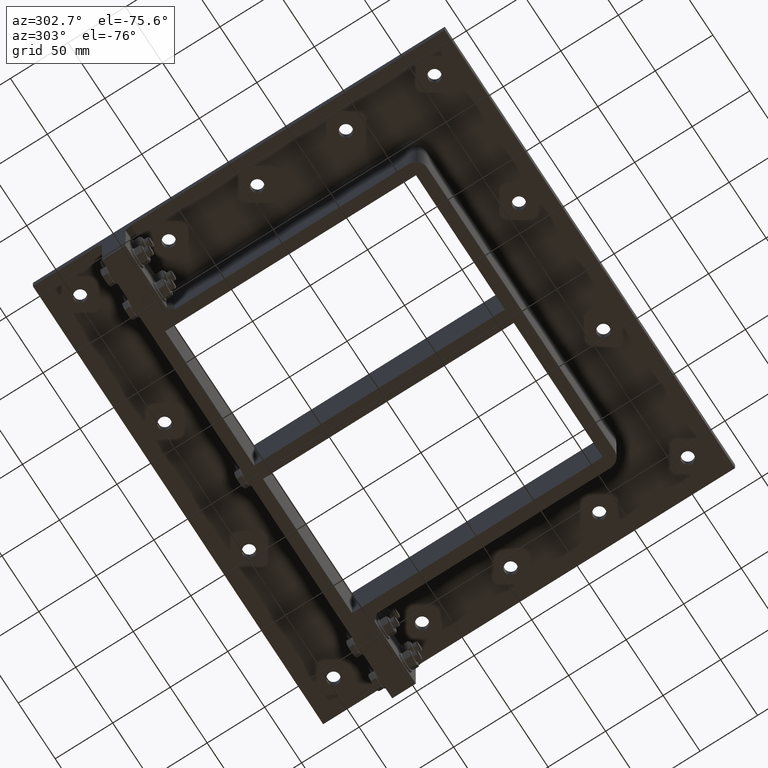
[diagram: clean part render]
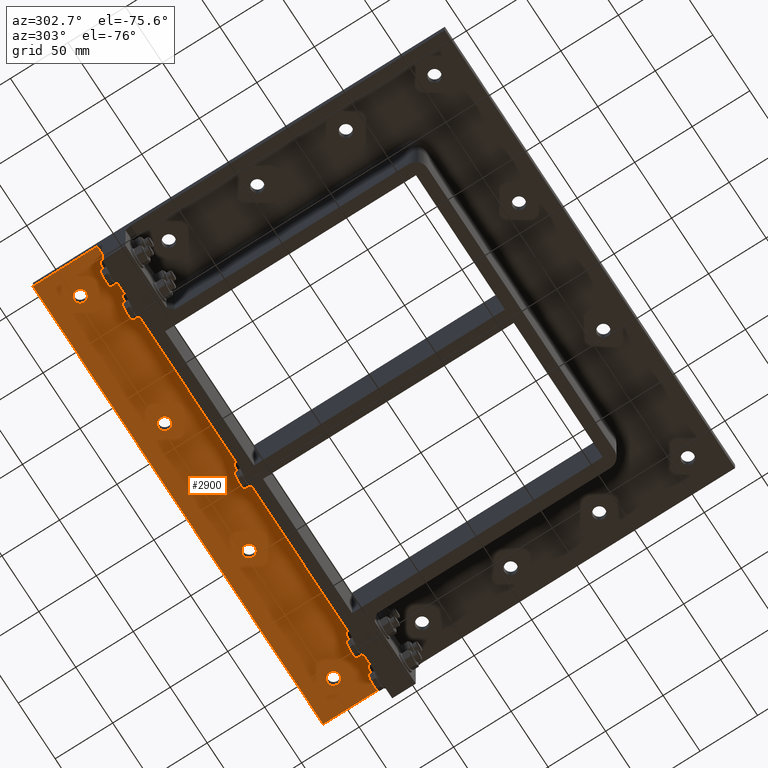
[diagram: same view with one face highlighted and labeled with its STEP entity id]
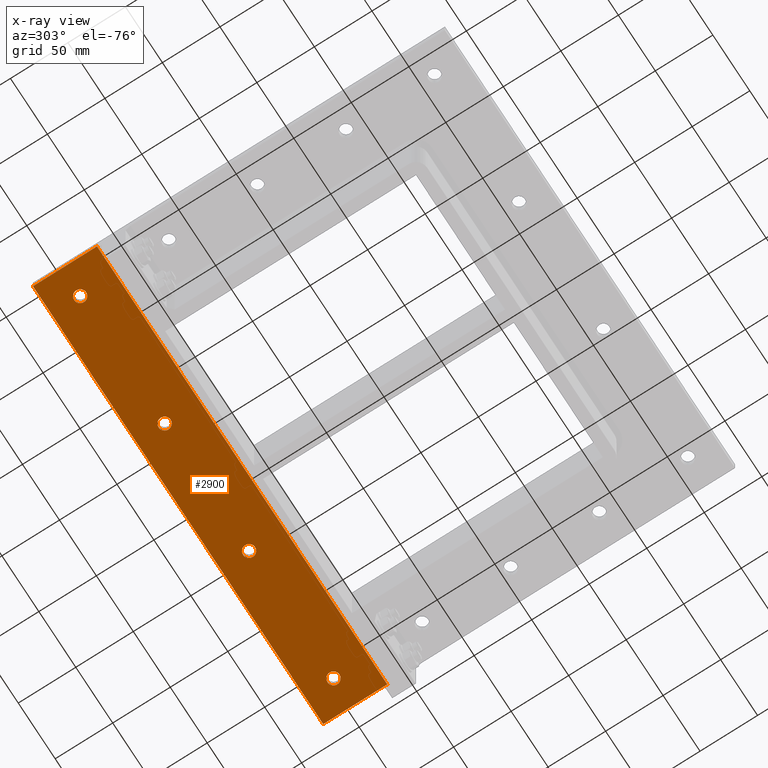
[diagram: x-ray of the same camera — body ghosted, the highlighted face saturated]
A machine part, auxiliary view. The second image highlights one B-rep face of the part: STEP entity #2900.
The next image is the same camera in x-ray: the body ghosted, the highlighted face saturated — about 0% of this face is hidden behind the body in this view.
In plain terms, the highlighted planar face has unit normal (0, 0, 1).
Its self-contained STEP definition (entity closure, byte-faithful):
#275=FACE_BOUND('',#751,.T.);
#276=FACE_BOUND('',#752,.T.);
#277=FACE_BOUND('',#753,.T.);
#278=FACE_BOUND('',#754,.T.);
#387=CIRCLE('',#3349,5.25);
#388=CIRCLE('',#3350,5.25);
#389=CIRCLE('',#3351,5.25);
#390=CIRCLE('',#3352,5.25);
#537=FACE_OUTER_BOUND('',#750,.T.);
#750=EDGE_LOOP('',(#2332,#2333,#2334,#2335));
#751=EDGE_LOOP('',(#2336));
#752=EDGE_LOOP('',(#2337));
#753=EDGE_LOOP('',(#2338));
#754=EDGE_LOOP('',(#2339));
#986=LINE('',#4700,#1209);
#1004=LINE('',#4786,#1227);
#1008=LINE('',#4793,#1231);
#1009=LINE('',#4794,#1232);
#1209=VECTOR('',#3840,10.);
#1227=VECTOR('',#3932,10.);
#1231=VECTOR('',#3938,10.);
#1232=VECTOR('',#3939,10.);
#1424=VERTEX_POINT('',#4693);
#1427=VERTEX_POINT('',#4698);
#1458=VERTEX_POINT('',#4785);
#1460=VERTEX_POINT('',#4792);
#1461=VERTEX_POINT('',#4795);
#1462=VERTEX_POINT('',#4797);
#1463=VERTEX_POINT('',#4799);
#1464=VERTEX_POINT('',#4801);
#1729=EDGE_CURVE('',#1427,#1424,#986,.T.);
#1771=EDGE_CURVE('',#1458,#1424,#1004,.T.);
#1775=EDGE_CURVE('',#1427,#1460,#1008,.T.);
#1776=EDGE_CURVE('',#1460,#1458,#1009,.T.);
#1777=EDGE_CURVE('',#1461,#1461,#387,.T.);
#1778=EDGE_CURVE('',#1462,#1462,#388,.T.);
#1779=EDGE_CURVE('',#1463,#1463,#389,.T.);
#1780=EDGE_CURVE('',#1464,#1464,#390,.T.);
#2332=ORIENTED_EDGE('',*,*,#1729,.F.);
#2333=ORIENTED_EDGE('',*,*,#1775,.T.);
#2334=ORIENTED_EDGE('',*,*,#1776,.T.);
#2335=ORIENTED_EDGE('',*,*,#1771,.T.);
#2336=ORIENTED_EDGE('',*,*,#1777,.T.);
#2337=ORIENTED_EDGE('',*,*,#1778,.T.);
#2338=ORIENTED_EDGE('',*,*,#1779,.T.);
#2339=ORIENTED_EDGE('',*,*,#1780,.T.);
#2778=PLANE('',#3348);
#2900=ADVANCED_FACE('',(#537,#275,#276,#277,#278),#2778,.F.);
#3348=AXIS2_PLACEMENT_3D('',#4791,#3936,#3937);
#3349=AXIS2_PLACEMENT_3D('',#4796,#3940,#3941);
#3350=AXIS2_PLACEMENT_3D('',#4798,#3942,#3943);
#3351=AXIS2_PLACEMENT_3D('',#4800,#3944,#3945);
#3352=AXIS2_PLACEMENT_3D('',#4802,#3946,#3947);
#3840=DIRECTION('',(1.,0.,0.));
#3932=DIRECTION('',(1.98475624513995E-16,-1.,0.));
#3936=DIRECTION('center_axis',(0.,0.,1.));
#3937=DIRECTION('ref_axis',(1.,0.,0.));
#3938=DIRECTION('',(-3.96951249027989E-16,1.,0.));
#3939=DIRECTION('',(1.,9.0399839155229E-17,0.));
#3940=DIRECTION('center_axis',(0.,0.,1.));
#3941=DIRECTION('ref_axis',(1.,0.,0.));
#3942=DIRECTION('center_axis',(0.,0.,1.));
#3943=DIRECTION('ref_axis',(1.,0.,0.));
#3944=DIRECTION('center_axis',(0.,0.,1.));
#3945=DIRECTION('ref_axis',(1.,0.,0.));
#3946=DIRECTION('center_axis',(0.,0.,1.));
#3947=DIRECTION('ref_axis',(1.,0.,0.));
#4693=CARTESIAN_POINT('',(196.5,123.3,-10.));
#4698=CARTESIAN_POINT('',(-196.5,123.3,-10.));
#4700=CARTESIAN_POINT('',(-63.2499999999999,123.3,-10.));
#4785=CARTESIAN_POINT('',(196.5,179.,-10.));
#4786=CARTESIAN_POINT('',(196.5,-179.,-10.));
#4791=CARTESIAN_POINT('Origin',(1.4210854715202E-13,-8.88178419700125E-14,
-10.));
#4792=CARTESIAN_POINT('',(-196.5,179.,-10.));
#4793=CARTESIAN_POINT('',(-196.5,179.,-10.));
#4794=CARTESIAN_POINT('',(196.5,179.,-10.));
#4795=CARTESIAN_POINT('',(-176.75,154.,-10.));
#4796=CARTESIAN_POINT('Origin',(-171.5,154.,-10.));
#4797=CARTESIAN_POINT('',(166.25,154.,-10.));
#4798=CARTESIAN_POINT('Origin',(171.5,154.,-10.));
#4799=CARTESIAN_POINT('',(51.9166666666669,154.,-10.));
#4800=CARTESIAN_POINT('Origin',(57.1666666666669,154.,-10.));
#4801=CARTESIAN_POINT('',(-62.4166666666664,154.,-10.));
#4802=CARTESIAN_POINT('Origin',(-57.1666666666664,154.,-10.));